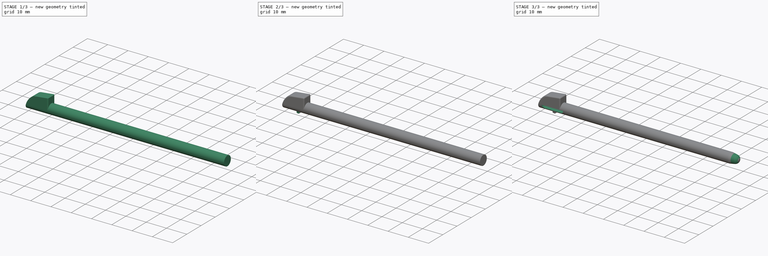
[diagram: build sequence overview — one tinted view per stage of 3, left to right]
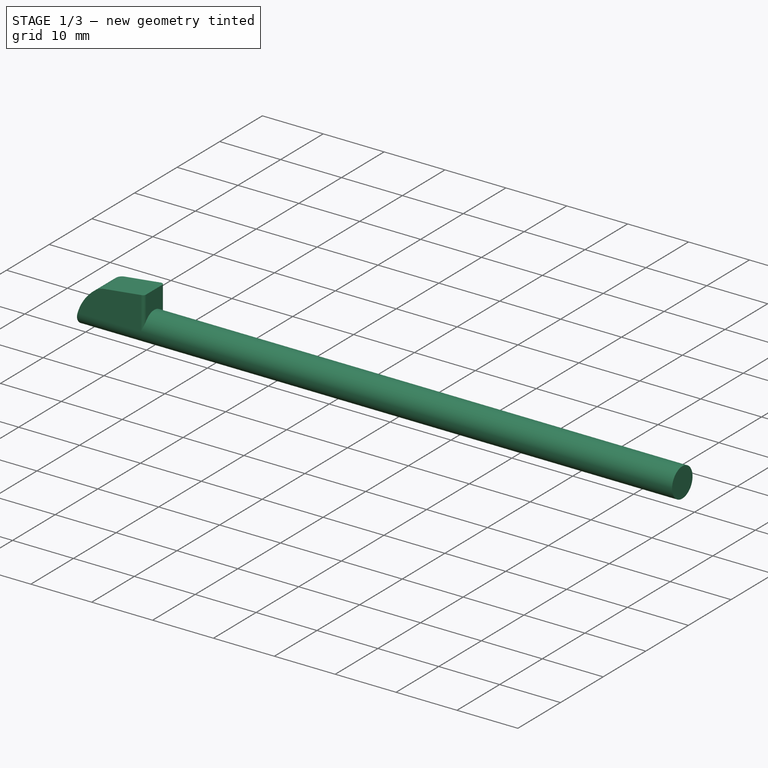
[diagram: stage 1 of 3 — iso view after this stage's code; geometry added in this stage tinted green]
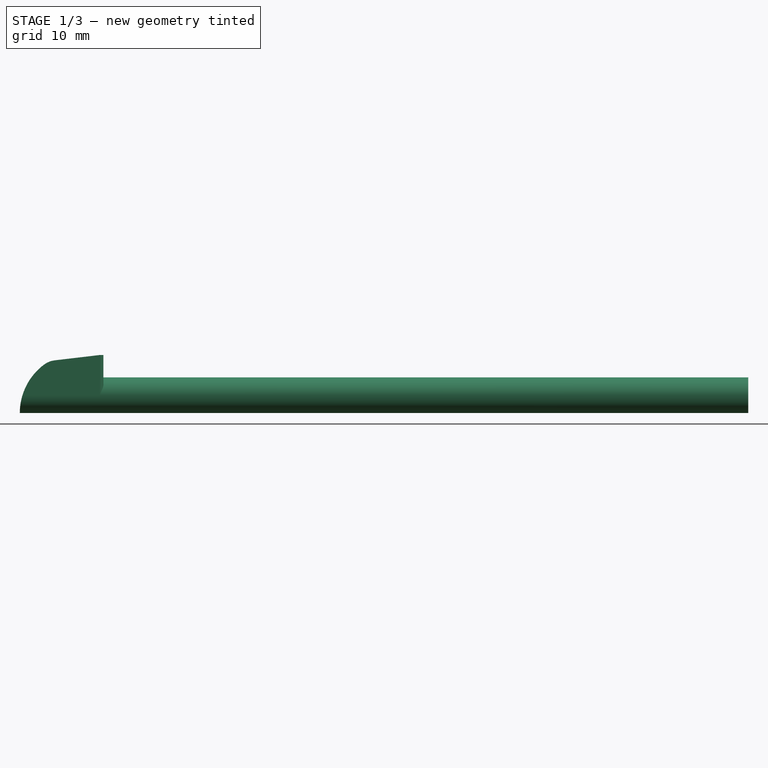
[diagram: stage 1 of 3 — front view after this stage's code; geometry added in this stage tinted green]
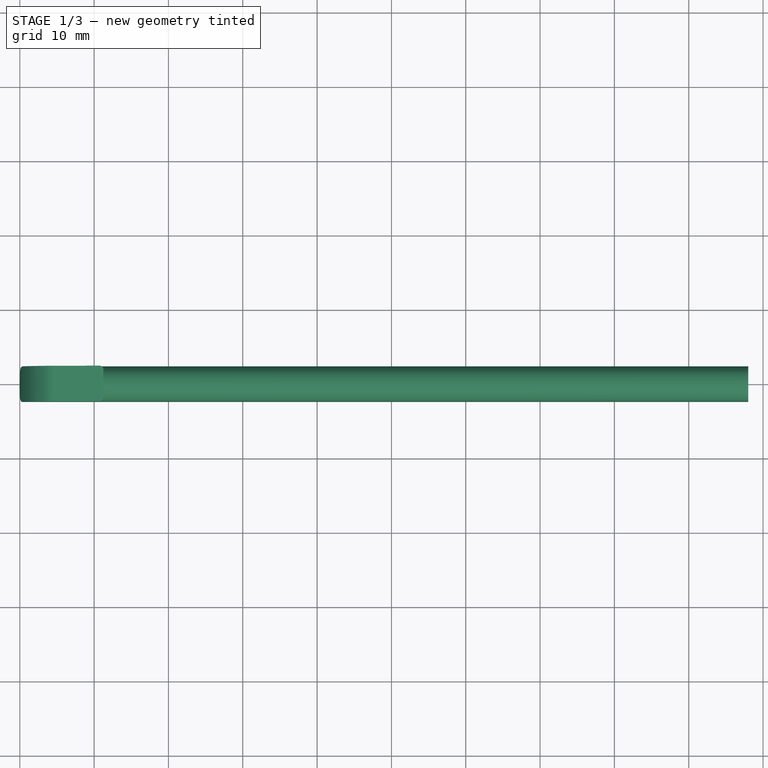
[diagram: stage 1 of 3 — top view after this stage's code; geometry added in this stage tinted green]
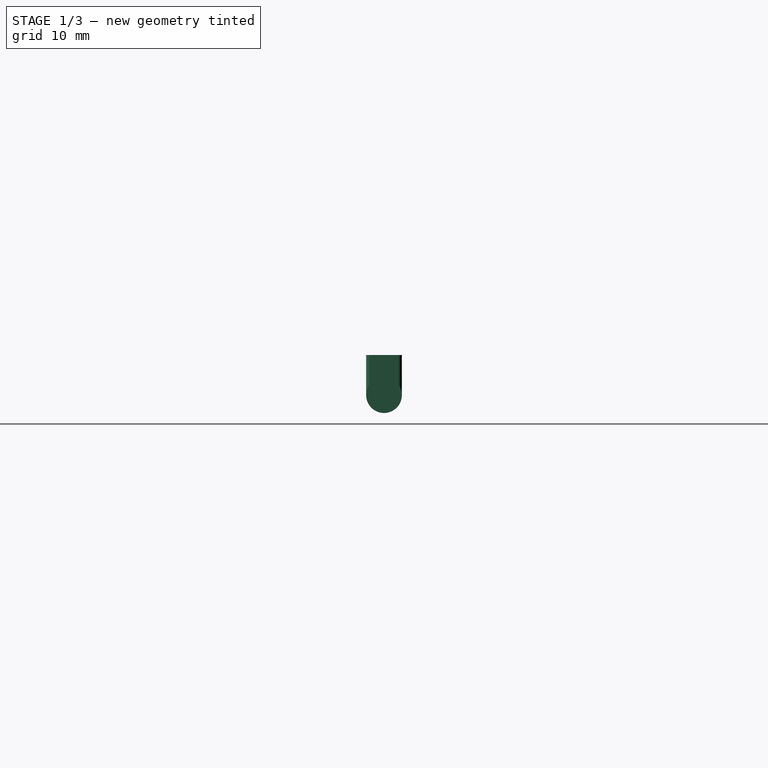
[diagram: stage 1 of 3 — right view after this stage's code; geometry added in this stage tinted green]
FCSTD DOCUMENT  (FreeCAD 1.0R39109 (Git))
Label: Wii U Stylus
License: Creative Commons Attribution-NonCommercial-ShareAlike
LicenseURL: http://creativecommons.org/licenses/by-nc-sa/4.0/
objects: Sketcher::SketchObject×7, PartDesign::Pad×3, PartDesign::Pocket×3, PartDesign::Fillet×1, PartDesign::Groove×1, PartDesign::Body×1
note: 39 computed .brp shape members not serialized (recipe doc carries the construction recipe); baked Part::Feature solids carry a one-line shape summary decoded from their .brp

FEATURE [Sketcher::SketchObject] Sketch
  ArcFitTolerance = 0
  AttachmentSupport = -> [YZ_Plane]
  FullyConstrained = true
  MakeInternals = false
  MapMode = 5
  Placement = pos=(0,0,0) rot=(0.57735,0.57735,0.57735;2.0944rad)
  sketch-geometry (1):
    g0: Circle CenterX=0 CenterY=0 CenterZ=0 NormalX=0 NormalY=0 NormalZ=1 AngleXU=0 Radius=2.4
  constraints (2):
    c: Coincident(g0,g-1)
    c: Diameter(g0) = 4.8
FEATURE [PartDesign::Pad] Pad
  Direction = (1,0,0)
  Length = 98
  Length2 = 10
  Placement = pos=(0,0,0) rot=(0.57735,0.57735,0.57735;2.0944rad)
  Profile = -> Sketch
  ReferenceAxis = -> Sketch [N_Axis]
  Suppressed = false
  Type = 0
FEATURE [Sketcher::SketchObject] Sketch001
  ArcFitTolerance = 0
  AttachmentSupport = -> [XY_Plane]
  ExternalGeometry = -> [Pad]
  FullyConstrained = true
  MakeInternals = false
  MapMode = 5
  sketch-geometry (9):
    g0: LineSegment [constr] StartX=5e-16 StartY=2.4 StartZ=0 EndX=11.25 EndY=2.4 EndZ=0
    g1: LineSegment [constr] StartX=11.25 StartY=2.4 StartZ=0 EndX=11.25 EndY=-2.4 EndZ=0
    g2: LineSegment [constr] StartX=11.25 StartY=-2.4 StartZ=0 EndX=0 EndY=-2.4 EndZ=0
    g3: LineSegment StartX=0 StartY=-2.4 StartZ=0 EndX=5e-16 EndY=2.4 EndZ=0
    g4: LineSegment StartX=5e-16 StartY=2.4 StartZ=0 EndX=10.75 EndY=2.4 EndZ=0
    g5: LineSegment StartX=11.25 StartY=1.9 StartZ=0 EndX=11.25 EndY=-1.9 EndZ=0
    g6: LineSegment StartX=10.75 StartY=-2.4 StartZ=0 EndX=0 EndY=-2.4 EndZ=0
    g7: ArcOfCircle CenterX=10.75 CenterY=1.9 CenterZ=0 NormalX=0 NormalY=0 NormalZ=1 AngleXU=0 Radius=0.5 StartAngle=0 EndAngle=1.5708
    g8: ArcOfCircle CenterX=10.75 CenterY=-1.9 CenterZ=0 NormalX=0 NormalY=0 NormalZ=1 AngleXU=0 Radius=0.5 StartAngle=4.71239 EndAngle=6.28319
  constraints (22):
    c: Coincident(g0,g1)
    c: Coincident(g1,g2)
    c: Coincident(g2,g3)
    c: Coincident(g3,g0)
    c: Horizontal(g0)
    c: Horizontal(g2)
    c: Vertical(g1)
    c: Coincident(g0,g-3)
    c: Coincident(g2,g-3)
    c: Distance(g0) = 11.25
    c: Coincident(g4,g3)
    c: Vertical(g5)
    c: Coincident(g6,g3)
    c: Tangent(g4,g7) = 1.5708
    c: Tangent(g5,g7) = 1.5708
    c: Tangent(g5,g8) = 1.5708
    c: Tangent(g6,g8) = 1.5708
    c: PointOnObject(g5,g1)
    c: PointOnObject(g4,g0)
    c: PointOnObject(g6,g2)
    c: Equal(g7,g8)
    c: Radius(g8) = 0.5
FEATURE [PartDesign::Pad] Pad001
  BaseFeature = -> Pad
  Direction = (0,0,1)
  Length = 5.4
  Length2 = 10
  Placement = pos=(0,0,0) rot=(0.57735,0.57735,0.57735;2.0944rad)
  Profile = -> Sketch001
  ReferenceAxis = -> Sketch001 [N_Axis]
  Refine = true
  Suppressed = false
  Type = 0
FEATURE [Sketcher::SketchObject] Sketch002
  ArcFitTolerance = 0
  AttachmentSupport = -> [Pad001]
  ExternalGeometry = -> [Pad001]
  FullyConstrained = true
  MakeInternals = false
  MapMode = 5
  Placement = pos=(-6e-16,-2.4,3e-16) rot=(0.57735,0.57735,-0.57735;2.0944rad)
  sketch-geometry (11):
    g0: ArcOfCircle CenterX=2.4 CenterY=8.12501 CenterZ=0 NormalX=0 NormalY=0 NormalZ=1 AngleXU=0 Radius=8.12501 StartAngle=3.78376 EndAngle=4.71239
    g1: LineSegment StartX=-4.68325 StartY=4.70238 StartZ=0 EndX=-5.4 EndY=10.75 EndZ=0
    g2: LineSegment [constr] StartX=2.4 StartY=5.507e-13 StartZ=0 EndX=-4.6 EndY=5.507e-13 EndZ=0
    g3: LineSegment [constr] StartX=-4.6 StartY=5.507e-13 StartZ=0 EndX=-4.6 EndY=4 EndZ=0
    g4: ArcOfCircle CenterX=-1.7041 CenterY=5.05546 CenterZ=0 NormalX=0 NormalY=0 NormalZ=1 AngleXU=0 Radius=3 StartAngle=3.25956 EndAngle=3.78376
    g5: LineSegment [constr] StartX=-5.4 StartY=10.75 StartZ=0 EndX=-4.6 EndY=4 EndZ=0
    g6: ArcOfCircle [constr] CenterX=2.4 CenterY=8.12501 CenterZ=0 NormalX=0 NormalY=0 NormalZ=1 AngleXU=0 Radius=8.12501 StartAngle=3.6741 EndAngle=4.71239
    g7: LineSegment StartX=-5.4 StartY=10.75 StartZ=0 EndX=-6.4 EndY=10.75 EndZ=0
    g8: LineSegment StartX=-6.4 StartY=10.75 StartZ=0 EndX=-6.4 EndY=-1 EndZ=0
    g9: LineSegment StartX=-6.4 StartY=-1 StartZ=0 EndX=2.4 EndY=-1 EndZ=0
    g10: LineSegment StartX=2.4 StartY=-1 StartZ=0 EndX=2.4 EndY=5.507e-13 EndZ=0
  constraints (29):
    c: Coincident(g0,g-3)
    c: Coincident(g2,g3)
    c: Horizontal(g2)
    c: Vertical(g3)
    c: Distance(g2) = 7
    c: Distance(g3) = 4
    c: Coincident(g1,g-4)
    c: Tangent(g2,g0) = 1.5708
    c: Tangent(g1,g4) = 1.5708
    c: Tangent(g0,g4) = -1.5708
    c: Coincident(g5,g1)
    c: Coincident(g5,g3)
    c: PointOnObject(g1,g5)
    c: Radius(g4) = 3
    c: Coincident(g6,g3)
    c: Coincident(g6,g0)
    c: Tangent(g2,g6)
    c: Equal(g0,g6)
    c: Coincident(g7,g1)
    c: Horizontal(g7)
    c: Coincident(g8,g7)
    c: Vertical(g8)
    c: Coincident(g9,g8)
    c: Horizontal(g9)
    c: Coincident(g10,g9)
    c: Coincident(g10,g0)
    c: Vertical(g10)
    c: Equal(g10,g7)
    c: Distance(g7) = 1
FEATURE [PartDesign::Pocket] Pocket
  BaseFeature = -> Pad001
  Direction = (0,1,0)
  Length = 10
  Length2 = 5
  Placement = pos=(0,0,0) rot=(0.57735,0.57735,0.57735;2.0944rad)
  Profile = -> Sketch002
  ReferenceAxis = -> Sketch002 [N_Axis]
  Refine = true
  Suppressed = false
  Type = 0
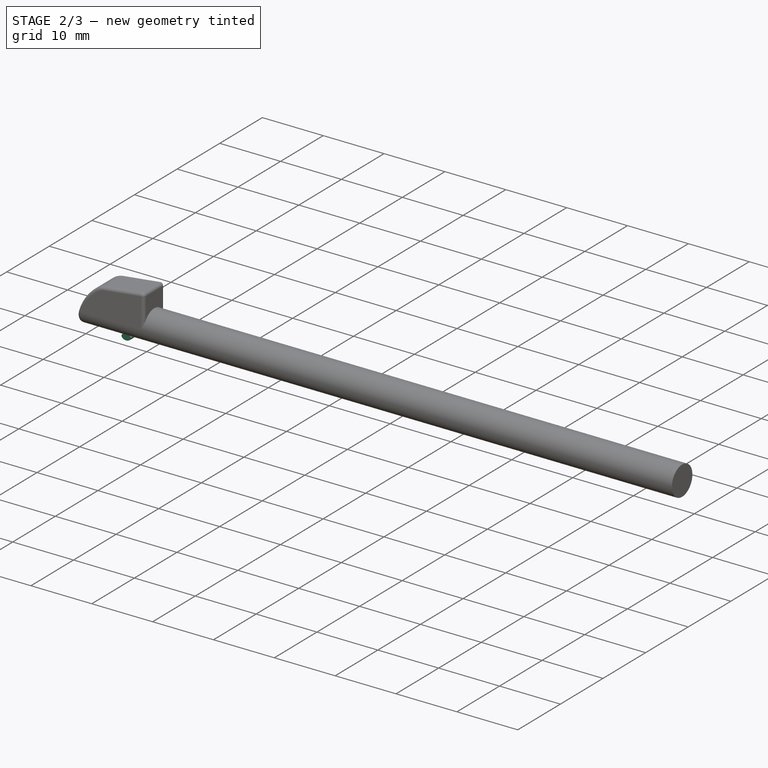
[diagram: stage 2 of 3 — iso view after this stage's code; geometry added in this stage tinted green]
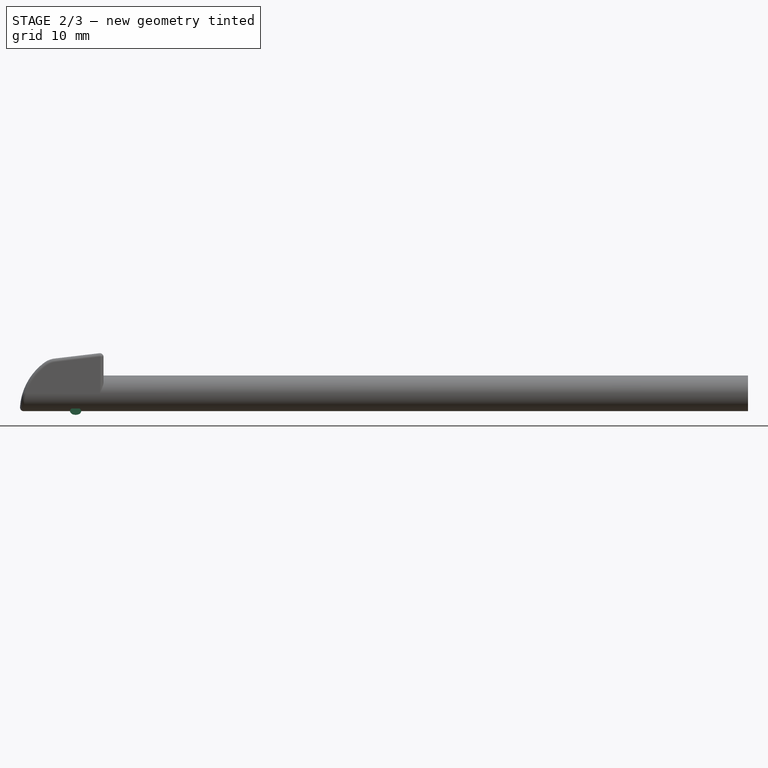
[diagram: stage 2 of 3 — front view after this stage's code; geometry added in this stage tinted green]
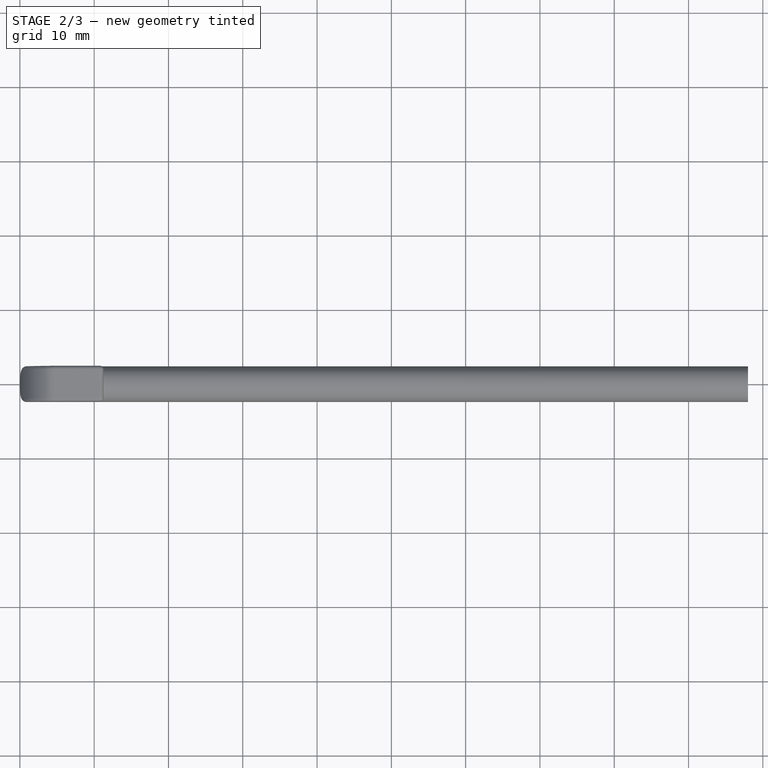
[diagram: stage 2 of 3 — top view after this stage's code; geometry added in this stage tinted green]
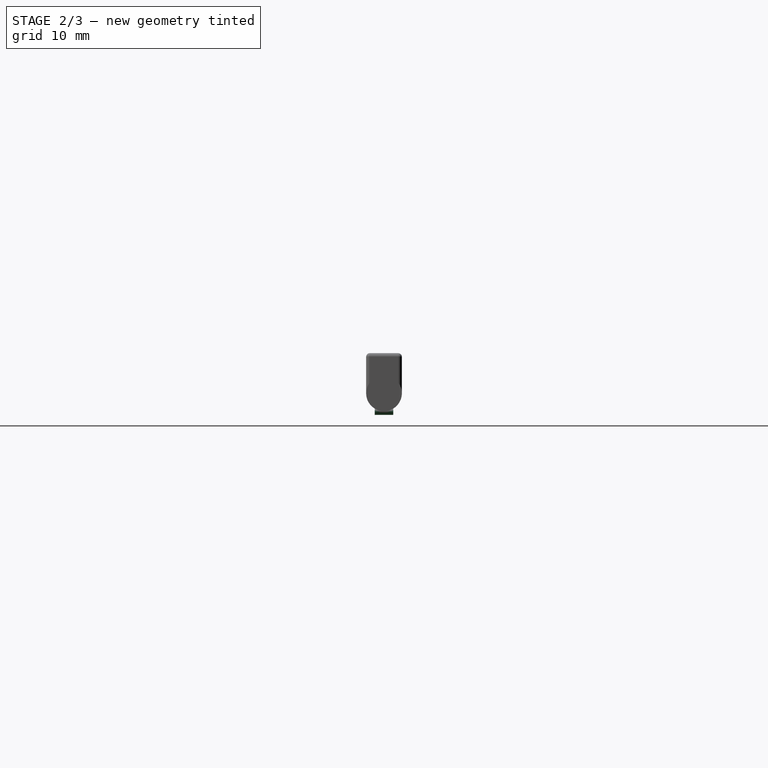
[diagram: stage 2 of 3 — right view after this stage's code; geometry added in this stage tinted green]
FEATURE [PartDesign::Fillet] Fillet
  Base = -> Pocket [Edge14,Edge19]
  BaseFeature = -> Pocket
  Placement = pos=(0,0,0) rot=(0.57735,0.57735,0.57735;2.0944rad)
  Radius = 0.49
  SupportTransform = false
  Suppressed = false
  UseAllEdges = false
FEATURE [Sketcher::SketchObject] Sketch003
  ArcFitTolerance = 0
  AttachmentSupport = -> [XZ_Plane]
  ExternalGeometry = -> [Pad]
  FullyConstrained = true
  MakeInternals = false
  MapMode = 5
  Placement = pos=(0,0,0) rot=(1,0,0;1.5708rad)
  sketch-geometry (8):
    g0: LineSegment [constr] StartX=0 StartY=0 StartZ=0 EndX=7.5 EndY=0 EndZ=0
    g1: LineSegment [constr] StartX=7.5 StartY=0 StartZ=0 EndX=7.5 EndY=-2.4 EndZ=0
    g2: LineSegment [constr] StartX=7.5 StartY=-2.4 StartZ=0 EndX=0 EndY=-2.4 EndZ=0
    g3: Ellipse CenterX=7.5 CenterY=-2.4 CenterZ=0 NormalX=0 NormalY=0 NormalZ=1 MajorRadius=0.75 MinorRadius=0.5 AngleXU=0
    g4: LineSegment [constr] StartX=8.25 StartY=-2.4 StartZ=0 EndX=6.75 EndY=-2.4 EndZ=0
    g5: LineSegment [constr] StartX=7.5 StartY=-1.9 StartZ=0 EndX=7.5 EndY=-2.9 EndZ=0
    g6: GeomPoint [constr] X=8.05902 Y=-2.4 Z=0
    g7: GeomPoint [constr] X=6.94098 Y=-2.4 Z=0
  constraints (13):
    c: Coincident(g0,g-1)
    c: Horizontal(g0)
    c: Distance(g0) = 7.5
    c: Coincident(g1,g0)
    c: Vertical(g1)
    c: Coincident(g2,g1)
    c: Coincident(g2,g-3)
    c: Horizontal(g2)
    c: InternalAlignment(g4-g7 -> g3) x4
    c: Coincident(g3,g1)
    c: Horizontal(g4)
    c: Distance(g4) = 1.5
    c: Distance(g5) = 1
FEATURE [PartDesign::Pad] Pad002
  BaseFeature = -> Fillet
  Direction = (0,-1,2e-16)
  Length = 1.25
  Length2 = 1.25
  Placement = pos=(0,0,0) rot=(0.57735,0.57735,0.57735;2.0944rad)
  Profile = -> Sketch003
  ReferenceAxis = -> Sketch003 [N_Axis]
  Suppressed = false
  Type = 4
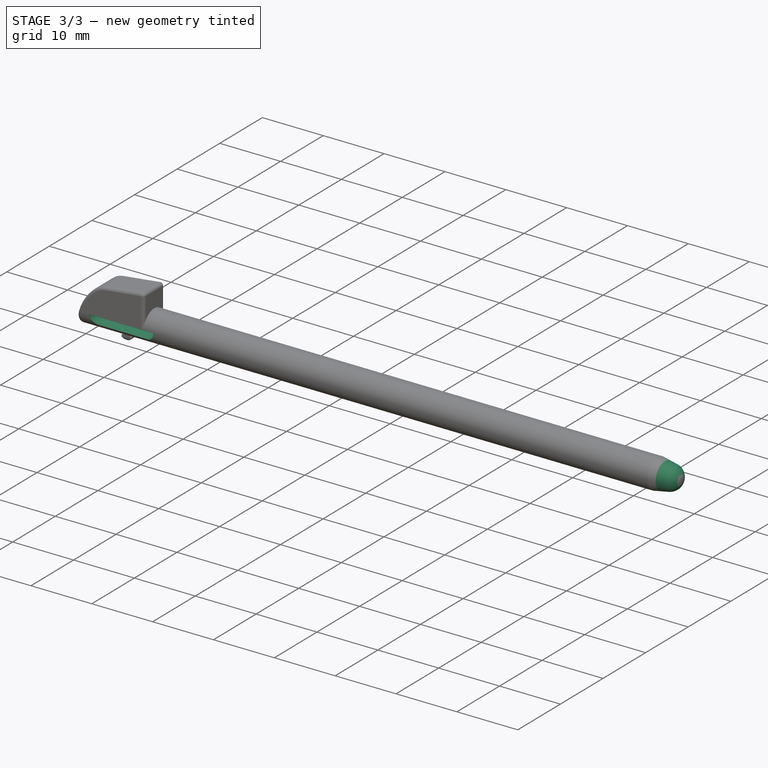
[diagram: stage 3 of 3 — iso view after this stage's code; geometry added in this stage tinted green]
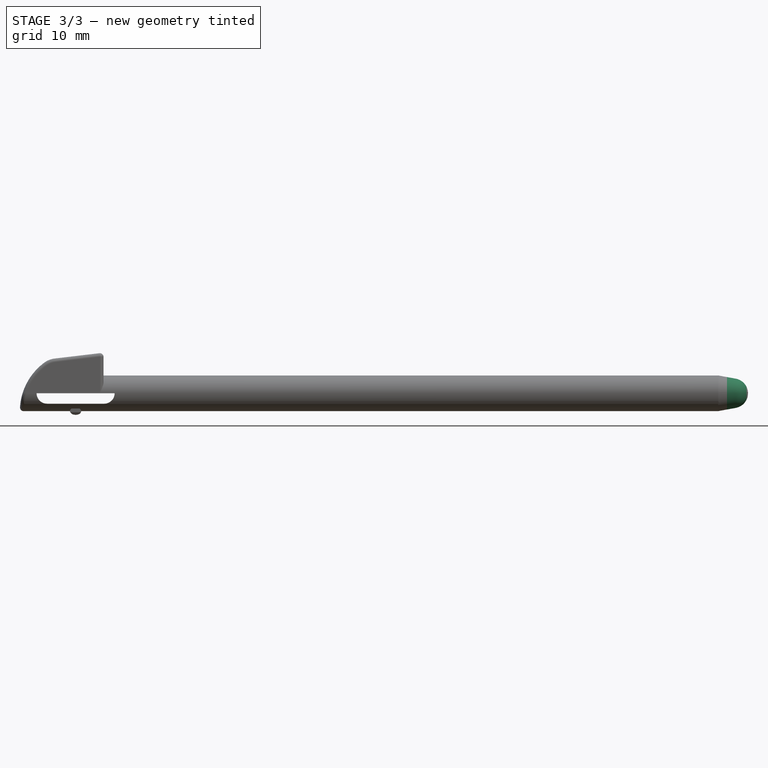
[diagram: stage 3 of 3 — front view after this stage's code; geometry added in this stage tinted green]
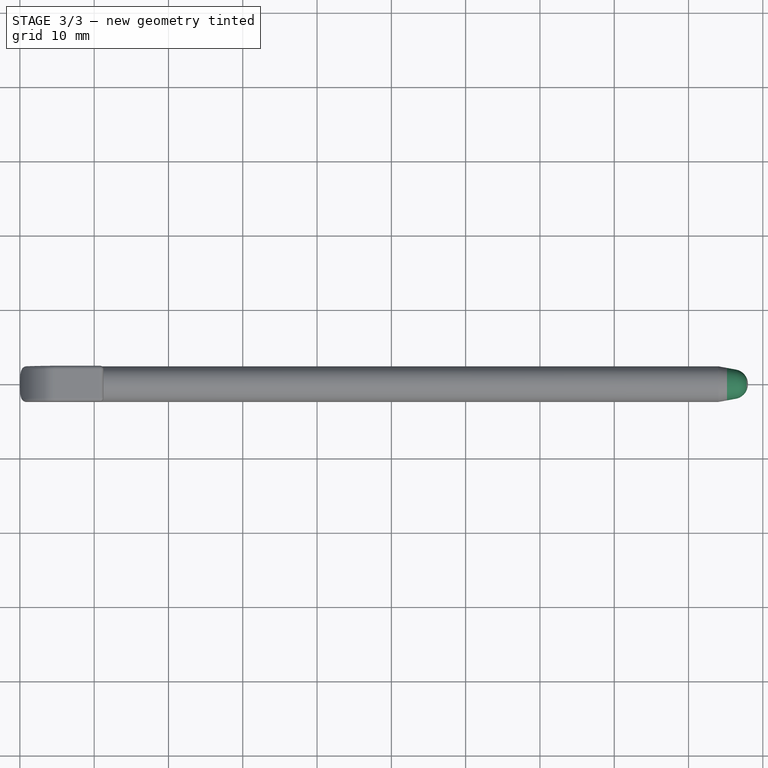
[diagram: stage 3 of 3 — top view after this stage's code; geometry added in this stage tinted green]
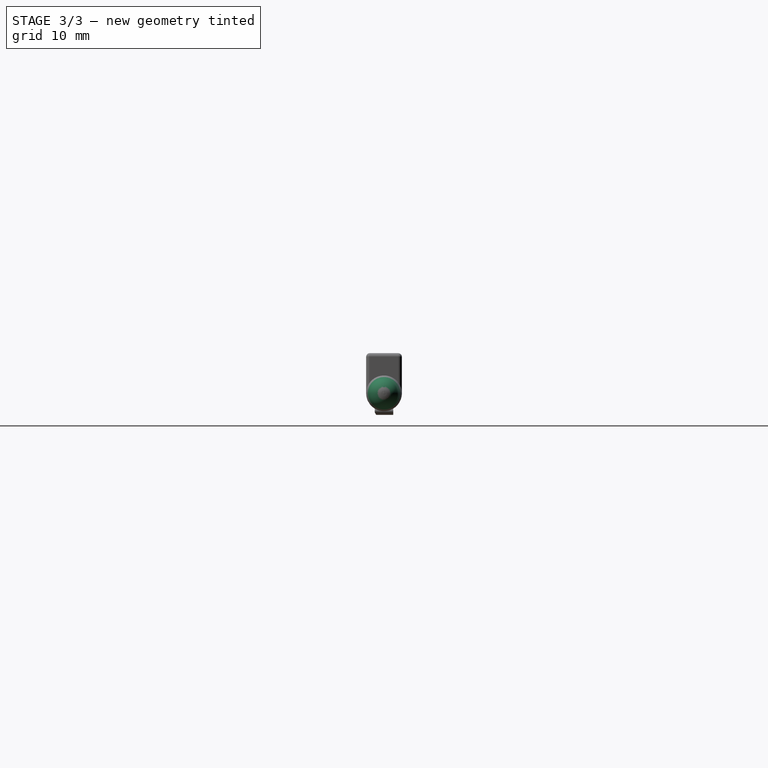
[diagram: stage 3 of 3 — right view after this stage's code; geometry added in this stage tinted green]
FEATURE [Sketcher::SketchObject] Sketch004
  ArcFitTolerance = 0
  AttachmentSupport = -> [Pad002]
  ExternalGeometry = -> [Pad002]
  FullyConstrained = true
  MakeInternals = false
  MapMode = 5
  Placement = pos=(-6e-16,-2.4,1.9e-15) rot=(0.57735,0.57735,-0.57735;2.0944rad)
  sketch-geometry (8):
    g0: ArcOfCircle [constr] CenterX=-1.3e-15 CenterY=3.65 CenterZ=0 NormalX=0 NormalY=0 NormalZ=1 AngleXU=0 Radius=1.4 StartAngle=3.14159 EndAngle=6.28319
    g1: ArcOfCircle [constr] CenterX=-3.1e-15 CenterY=11.35 CenterZ=0 NormalX=0 NormalY=0 NormalZ=1 AngleXU=0 Radius=1.4 StartAngle=3e-16 EndAngle=3.14159
    g2: LineSegment StartX=1.4 StartY=3.65 StartZ=0 EndX=1.4 EndY=11.35 EndZ=0
    g3: LineSegment [constr] StartX=-1.4 StartY=11.35 StartZ=0 EndX=-1.4 EndY=3.65 EndZ=0
    g4: LineSegment [constr] StartX=2.4 StartY=7.5 StartZ=0 EndX=1.4 EndY=7.5 EndZ=0
    g5: LineSegment StartX=-3.4e-15 StartY=12.75 StartZ=0 EndX=-3.4e-15 EndY=2.25 EndZ=0
    g6: ArcOfCircle CenterX=-3.2e-15 CenterY=11.35 CenterZ=0 NormalX=0 NormalY=0 NormalZ=1 AngleXU=0 Radius=1.4 StartAngle=8e-16 EndAngle=1.5708
    g7: ArcOfCircle CenterX=-1.9e-15 CenterY=3.65 CenterZ=0 NormalX=0 NormalY=0 NormalZ=1 AngleXU=0 Radius=1.4 StartAngle=4.71239 EndAngle=6.28319
  constraints (22):
    c: Tangent(g0,g2) = -1.5708
    c: Tangent(g2,g1) = -1.5708
    c: Tangent(g1,g3) = -1.5708
    c: Tangent(g3,g0) = -1.5708
    c: Equal(g0,g1)
    c: PointOnObject(g0,g-3)
    c: PointOnObject(g1,g-3)
    c: Coincident(g4,g-4)
    c: Horizontal(g4)
    c: Symmetric(g1,g0,g4)
    c: Distance(g2) = 7.7
    c: Distance(g4) = 1
    c: PointOnObject(g5,g1)
    c: PointOnObject(g5,g0)
    c: Vertical(g5)
    c: PointOnObject(g-3,g5)
    c: Coincident(g6,g5)
    c: Coincident(g6,g2)
    c: Coincident(g7,g5)
    c: Coincident(g7,g2)
    c: Equal(g6,g1)
    c: Equal(g7,g0)
FEATURE [PartDesign::Pocket] Pocket001
  BaseFeature = -> Pad002
  Direction = (0,1,0)
  Length = 10
  Length2 = 5
  Placement = pos=(0,0,0) rot=(0.57735,0.57735,0.57735;2.0944rad)
  Profile = -> Sketch004
  ReferenceAxis = -> Sketch004 [N_Axis]
  Suppressed = false
  Type = 0
FEATURE [Sketcher::SketchObject] Sketch005
  ArcFitTolerance = 0
  AttachmentSupport = -> [XZ_Plane]
  ExternalGeometry = -> [Pocket001]
  FullyConstrained = true
  MakeInternals = false
  MapMode = 5
  Placement = pos=(0,0,0) rot=(1,0,0;1.5708rad)
  sketch-geometry (6):
    g0: ArcOfCircle CenterX=96 CenterY=3.22732e-07 CenterZ=0 NormalX=0 NormalY=0 NormalZ=1 AngleXU=0 Radius=2 StartAngle=6.28319 EndAngle=7.67266
    g1: LineSegment StartX=98 StartY=2.4 StartZ=0 EndX=94 EndY=2.4 EndZ=0
    g2: LineSegment StartX=94 StartY=2.4 StartZ=0 EndX=96.3607 EndY=1.96721 EndZ=0
    g3: LineSegment StartX=98 StartY=2.4 StartZ=0 EndX=99 EndY=2.4 EndZ=0
    g4: LineSegment StartX=98 StartY=8.18e-14 StartZ=0 EndX=99 EndY=8.18e-14 EndZ=0
    g5: LineSegment StartX=99 StartY=8.18e-14 StartZ=0 EndX=99 EndY=2.4 EndZ=0
  constraints (16):
    c: Tangent(g0,g-3)
    c: Symmetric(g-3,g-3,g0)
    c: Coincident(g1,g-3)
    c: Horizontal(g1)
    c: Coincident(g2,g1)
    c: Tangent(g2,g0) = 1.5708
    c: Distance(g1) = 4
    c: Diameter(g0) = 4
    c: Coincident(g3,g1)
    c: Horizontal(g3)
    c: Coincident(g4,g0)
    c: Horizontal(g4)
    c: Coincident(g5,g4)
    c: Coincident(g5,g3)
    c: Vertical(g5)
    c: Distance(g3) = 1
FEATURE [PartDesign::Groove] Groove
  Angle = 360
  Angle2 = 60
  Axis = (1,0,0)
  Base = (0,0,0)
  BaseFeature = -> Pocket001
  Placement = pos=(0,0,0) rot=(0.57735,0.57735,0.57735;2.0944rad)
  Profile = -> Sketch005
  ReferenceAxis = -> Sketch005 [H_Axis]
  Refine = true
  Reversed = true
  Suppressed = false
  Type = 0
FEATURE [Sketcher::SketchObject] Sketch006
  ArcFitTolerance = 0
  AttachmentSupport = -> [YZ_Plane]
  ExternalGeometry = -> [Groove]
  FullyConstrained = true
  MakeInternals = false
  MapMode = 5
  Placement = pos=(0,0,0) rot=(0.57735,0.57735,0.57735;2.0944rad)
  sketch-geometry (7):
    g0: LineSegment [constr] StartX=1.25 StartY=-2.9 StartZ=0 EndX=-1.25 EndY=-2.9 EndZ=0
    g1: LineSegment [constr] StartX=-1.04333 StartY=-2.9 StartZ=0 EndX=-1.25 EndY=-2.55753 EndZ=0
    g2: LineSegment [constr] StartX=-1.25 StartY=-2.55753 StartZ=0 EndX=-1.94434 EndY=-1.40696 EndZ=0
    g3: LineSegment [constr] StartX=-1.94434 StartY=-1.40696 StartZ=0 EndX=-2.15101 EndY=-1.06449 EndZ=0
    g4: LineSegment StartX=-1.04333 StartY=-2.9 StartZ=0 EndX=-2.15101 EndY=-2.9 EndZ=0
    g5: LineSegment StartX=-2.15101 StartY=-2.9 StartZ=0 EndX=-2.15101 EndY=-1.06449 EndZ=0
    g6: LineSegment StartX=-2.15101 StartY=-1.06449 StartZ=0 EndX=-1.04333 EndY=-2.9 EndZ=0
  constraints (19):
    c: Coincident(g0,g-5)
    c: Coincident(g0,g-4)
    c: PointOnObject(g1,g0)
    c: PointOnObject(g1,g-4)
    c: Coincident(g2,g1)
    c: Distance(g1) = 0.4
    c: Parallel(g2,g1)
    c: PointOnObject(g3,g-3)
    c: PointOnObject(g3,g-3)
    c: Coincident(g2,g3)
    c: Distance(g3) = 0.4
    c: Parallel(g3,g2)
    c: Coincident(g4,g1)
    c: Horizontal(g4)
    c: Coincident(g5,g4)
    c: Coincident(g5,g3)
    c: Vertical(g5)
    c: Coincident(g6,g5)
    c: Coincident(g6,g4)
FEATURE [PartDesign::Pocket] Pocket002
  BaseFeature = -> Groove
  Direction = (-1,0,0)
  Length = 100
  Length2 = 100
  Placement = pos=(0,0,0) rot=(0.57735,0.57735,0.57735;2.0944rad)
  Profile = -> Sketch006
  ReferenceAxis = -> Sketch006 [N_Axis]
  Suppressed = false
  Type = 4
FEATURE [PartDesign::Body] Body  label="Nintendo Wii U Stylus"
  AllowCompound = false
  Group = -> [Sketch,Pad,Sketch001,Pad001,Sketch002,Pocket,Fillet,Sketch003,Pad002,Sketch004,Pocket001,Sketch005,Groove,Sketch006,Pocket002]
  Origin = -> Origin
  Placement = pos=(0,0,0) rot=(1,0,0;1.02782rad)
  Tip = -> Pocket002
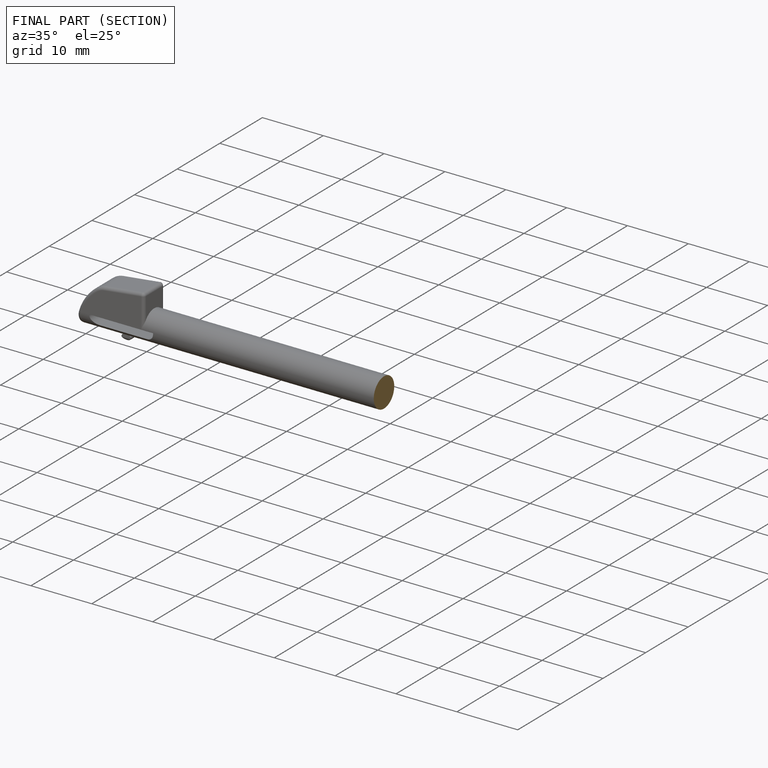
[diagram: finished part — half-section view (interior)]
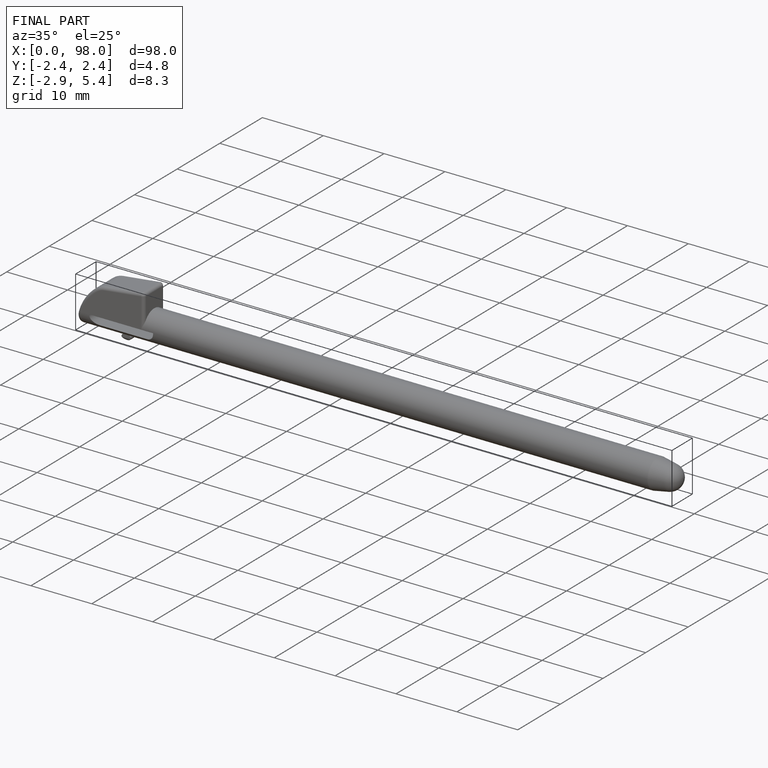
[diagram: finished part — iso view with bounding-box wireframe]
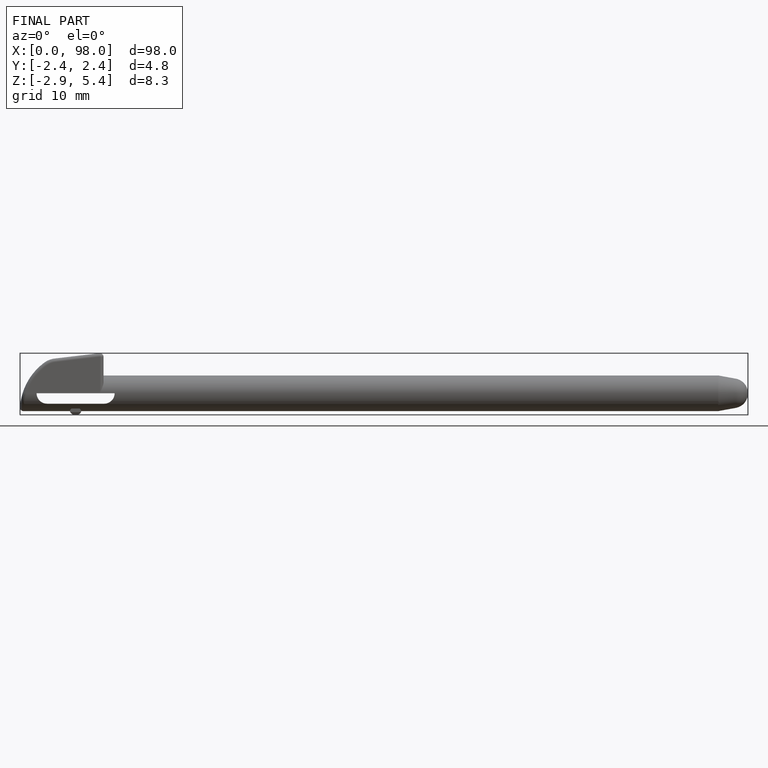
[diagram: finished part — front view with bounding-box wireframe]
